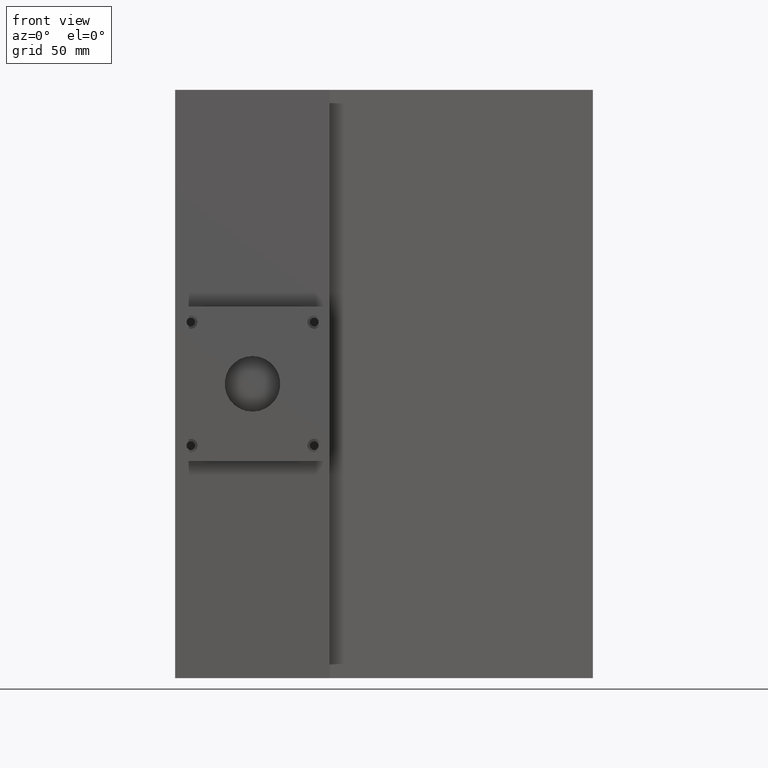
[diagram: clean part render]
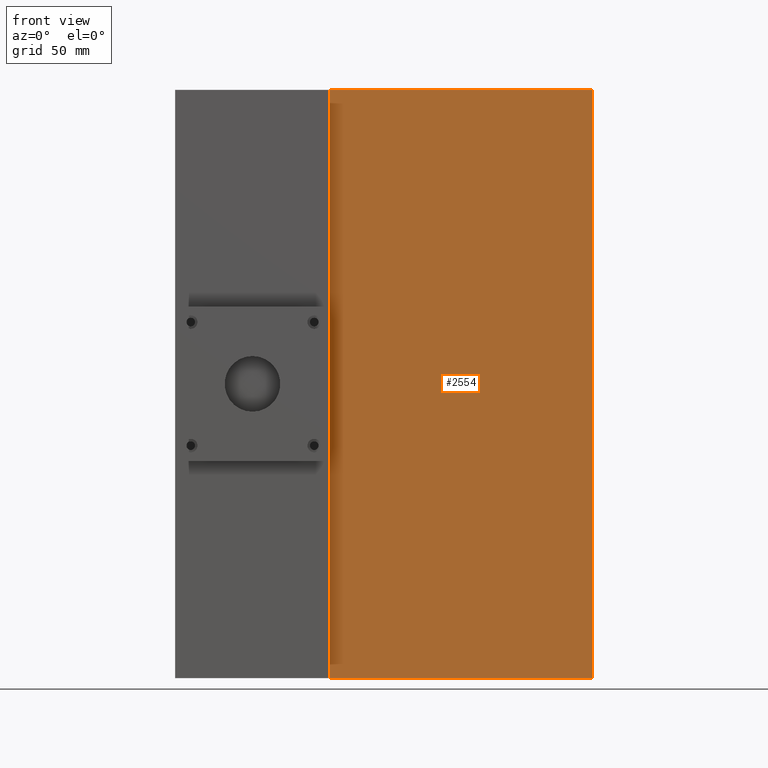
[diagram: same view with one face highlighted and labeled with its STEP entity id]
A machine part, front view. The second image highlights one B-rep face of the part: STEP entity #2554.
In plain terms, the highlighted planar face has unit normal (-0.1621, 0.9868, 0).
Its self-contained STEP definition (entity closure, byte-faithful):
#219 = ORIENTED_EDGE ( 'NONE', *, *, #640, .F. ) ;
#413 = VERTEX_POINT ( 'NONE', #1110 ) ;
#511 = EDGE_CURVE ( 'NONE', #829, #809, #933, .T. ) ;
#640 = EDGE_CURVE ( 'NONE', #1904, #809, #788, .T. ) ;
#788 = LINE ( 'NONE', #2867, #1472 ) ;
#799 = DIRECTION ( 'NONE',  ( -0.1621448079572028200, 0.9867669741395492800, 0.0000000000000000000 ) ) ;
#809 = VERTEX_POINT ( 'NONE', #1102 ) ;
#829 = VERTEX_POINT ( 'NONE', #2090 ) ;
#915 = EDGE_LOOP ( 'NONE', ( #1550, #219, #1008, #982 ) ) ;
#933 = LINE ( 'NONE', #2391, #1020 ) ;
#958 = CARTESIAN_POINT ( 'NONE',  ( 233.8836175392034400, 0.0000000000000000000, 238.0000000000000000 ) ) ;
#982 = ORIENTED_EDGE ( 'NONE', *, *, #2876, .T. ) ;
#1008 = ORIENTED_EDGE ( 'NONE', *, *, #1860, .F. ) ;
#1020 = VECTOR ( 'NONE', #1849, 1000.000000000000100 ) ;
#1102 = CARTESIAN_POINT ( 'NONE',  ( 233.8836175392034400, 0.0000000000000000000, -238.0000000000000000 ) ) ;
#1110 = CARTESIAN_POINT ( 'NONE',  ( 20.88361753920343500, -34.99999999999998600, 238.0000000000000000 ) ) ;
#1259 = CARTESIAN_POINT ( 'NONE',  ( 233.8836175392034400, 0.0000000000000000000, 238.0000000000000000 ) ) ;
#1331 = DIRECTION ( 'NONE',  ( -0.9867669741395492800, -0.1621448079572028200, 0.0000000000000000000 ) ) ;
#1472 = VECTOR ( 'NONE', #2843, 1000.000000000000000 ) ;
#1521 = CARTESIAN_POINT ( 'NONE',  ( 20.88361753920343500, -34.99999999999998600, 238.0000000000000000 ) ) ;
#1550 = ORIENTED_EDGE ( 'NONE', *, *, #511, .T. ) ;
#1635 = LINE ( 'NONE', #1521, #2586 ) ;
#1668 = AXIS2_PLACEMENT_3D ( 'NONE', #2166, #799, #1331 ) ;
#1729 = DIRECTION ( 'NONE',  ( -0.0000000000000000000, -0.0000000000000000000, -1.000000000000000000 ) ) ;
#1780 = VECTOR ( 'NONE', #2664, 1000.000000000000100 ) ;
#1849 = DIRECTION ( 'NONE',  ( 0.9867669741395492800, 0.1621448079572028500, -0.0000000000000000000 ) ) ;
#1860 = EDGE_CURVE ( 'NONE', #413, #1904, #2396, .T. ) ;
#1904 = VERTEX_POINT ( 'NONE', #1259 ) ;
#1941 = PLANE ( 'NONE',  #1668 ) ;
#2090 = CARTESIAN_POINT ( 'NONE',  ( 20.88361753920343500, -34.99999999999998600, -238.0000000000000000 ) ) ;
#2166 = CARTESIAN_POINT ( 'NONE',  ( 233.8836175392034400, 0.0000000000000000000, 238.0000000000000000 ) ) ;
#2391 = CARTESIAN_POINT ( 'NONE',  ( 233.8836175392034400, 0.0000000000000000000, -238.0000000000000000 ) ) ;
#2396 = LINE ( 'NONE', #958, #1780 ) ;
#2468 = FACE_OUTER_BOUND ( 'NONE', #915, .T. ) ;
#2554 = ADVANCED_FACE ( 'NONE', ( #2468 ), #1941, .F. ) ;
#2586 = VECTOR ( 'NONE', #1729, 1000.000000000000000 ) ;
#2664 = DIRECTION ( 'NONE',  ( 0.9867669741395492800, 0.1621448079572028500, -0.0000000000000000000 ) ) ;
#2843 = DIRECTION ( 'NONE',  ( -0.0000000000000000000, -0.0000000000000000000, -1.000000000000000000 ) ) ;
#2867 = CARTESIAN_POINT ( 'NONE',  ( 233.8836175392034400, 0.0000000000000000000, 238.0000000000000000 ) ) ;
#2876 = EDGE_CURVE ( 'NONE', #413, #829, #1635, .T. ) ;